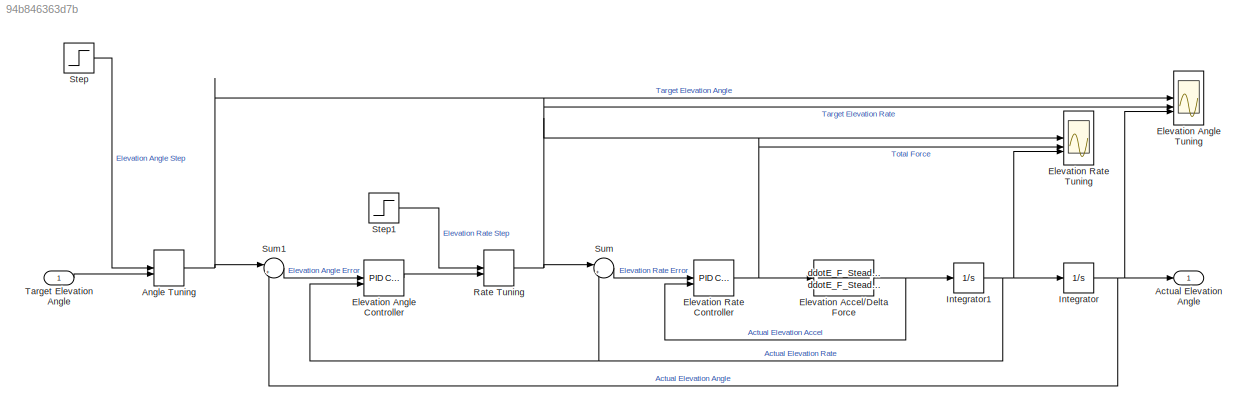
MODEL slx_94b846363d7b
KIND model
CONFIG AbsTol = auto
CONFIG EnableMultiTasking = off
CONFIG FixedStep = auto
CONFIG MaxStep = auto
CONFIG MinStep = auto
CONFIG RelTol = 1e-3
CONFIG SampleTimeConstraint = Unconstrained
CONFIG SolverName = VariableStepAuto
CONFIG StartTime = 0.0
CONFIG StopTime = 5
BLOCK [Outport] Actual Elevation Angle
BLOCK [ManualSwitch] Angle Tuning
BLOCK [TransferFcn] Elevation Accel//Delta Force
  Denominator = ddotE_F_Steady_den
  Numerator = ddotE_F_Steady_num
BLOCK [Reference] Elevation Angle Controller  REF=slpidlib/PID Controller
  LibrarySourceBlock = simulink/Continuous/PID Controller
  SourceBlock = slpidlib/PID Controller
  SourceType = PID 1dof
BLOCK [Scope] Elevation Angle Tuning
  DefaultConfigurationName = spbscopes.TimeScopeBlockCfg
  Floating = off
  NumInputPorts = 3
  ScopeSpecificationString = spbscopes.TimeScopeBlockCfg('CurrentConfiguration', extmgr.ConfigurationSet(extmgr.Configuration('Core','General UI',true,'FigureColor',[0.156862745098039 0.156862745098039 0.156862745098039]),extmgr.Configuration('Core','Source UI',true),extmgr.Configuration('Sources','WiredSimulink',true,'DataLoggingVariableName','ScopeData1'),extmgr.Configuration('Visuals','Time Domain',true,'DisplayPropertyDef...<+1657ch>
  UserDataPersistent = on
BLOCK [Reference] Elevation Rate Controller  REF=slpidlib/PID Controller
  LibrarySourceBlock = simulink/Continuous/PID Controller
  SourceBlock = slpidlib/PID Controller
  SourceType = PID 1dof
BLOCK [Scope] Elevation Rate Tuning
  DefaultConfigurationName = spbscopes.TimeScopeBlockCfg
  Floating = off
  NumInputPorts = 3
  ScopeSpecificationString = spbscopes.TimeScopeBlockCfg('CurrentConfiguration', extmgr.ConfigurationSet(extmgr.Configuration('Core','General UI',true,'FigureColor',[0.156862745098039 0.156862745098039 0.156862745098039]),extmgr.Configuration('Core','Source UI',true),extmgr.Configuration('Sources','WiredSimulink',true),extmgr.Configuration('Visuals','Time Domain',true,'DisplayPropertyDefaults',struct('MinYLimReal','-0.98468',...<+1593ch>
  UserDataPersistent = on
BLOCK [Integrator] Integrator
BLOCK [Integrator] Integrator1
BLOCK [ManualSwitch] Rate Tuning
  CurrentSetting = 0
BLOCK [Step] Step
  After = 0.4
  SampleTime = 0
BLOCK [Step] Step1
  After = pi/2
  SampleTime = 0
  Time = 0
BLOCK [Sum] Sum
  Inputs = |+-
BLOCK [Sum] Sum1
  Inputs = |+-
BLOCK [Inport] Target Elevation  Angle
NET Angle Tuning:1 -> Elevation Angle Tuning:1, Sum1:1
NET Elevation Accel//Delta Force:1 -> Elevation Rate Controller:2, Integrator1:1
LINE Elevation Angle Controller:1 -> Rate Tuning:2
NET Elevation Rate Controller:1 -> Elevation Accel//Delta Force:1, Elevation Rate Tuning:2
NET Integrator1:1 -> Elevation Angle Controller:2, Elevation Rate Tuning:3, Integrator:1, Sum:2
NET Integrator:1 -> Actual Elevation Angle:1, Elevation Angle Tuning:3, Sum1:2
NET Rate Tuning:1 -> Elevation Angle Tuning:2, Elevation Rate Tuning:1, Sum:1
LINE Step1:1 -> Rate Tuning:1
LINE Step:1 -> Angle Tuning:1
LINE Sum1:1 -> Elevation Angle Controller:1
LINE Sum:1 -> Elevation Rate Controller:1
LINE Target Elevation  Angle:1 -> Angle Tuning:2
note: NET lines group one-source signal fan-out (src -> all destinations, sorted); 1:1 wires keep LINE
